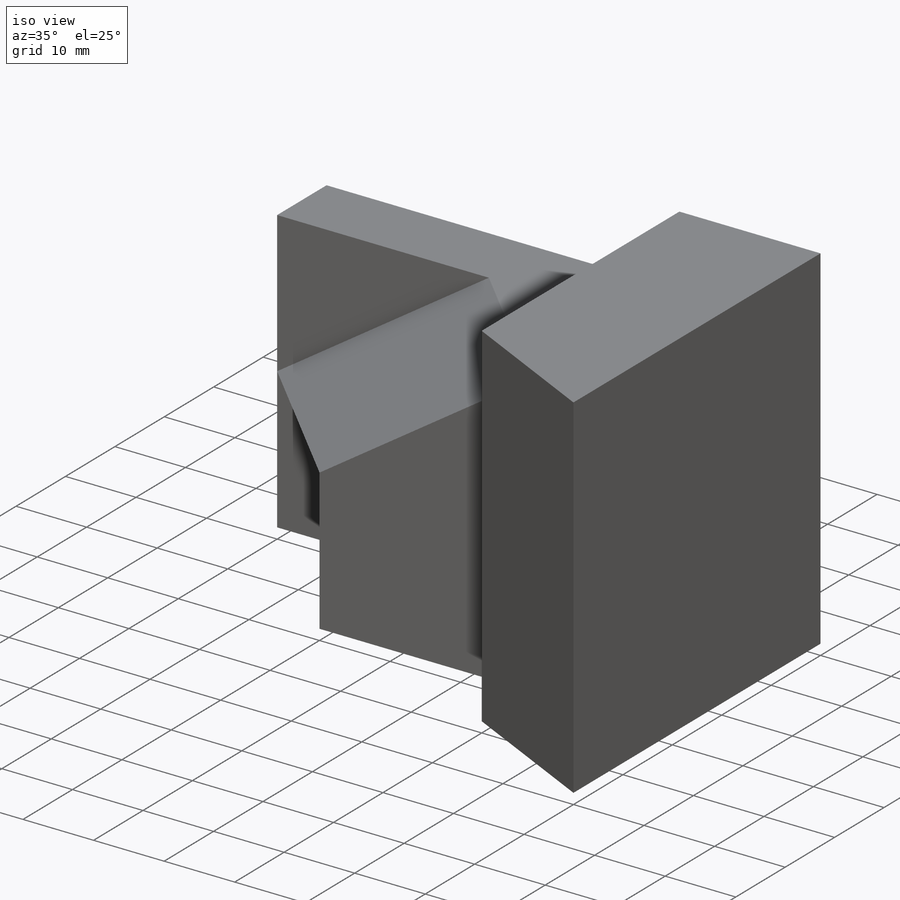
[diagram: iso view]
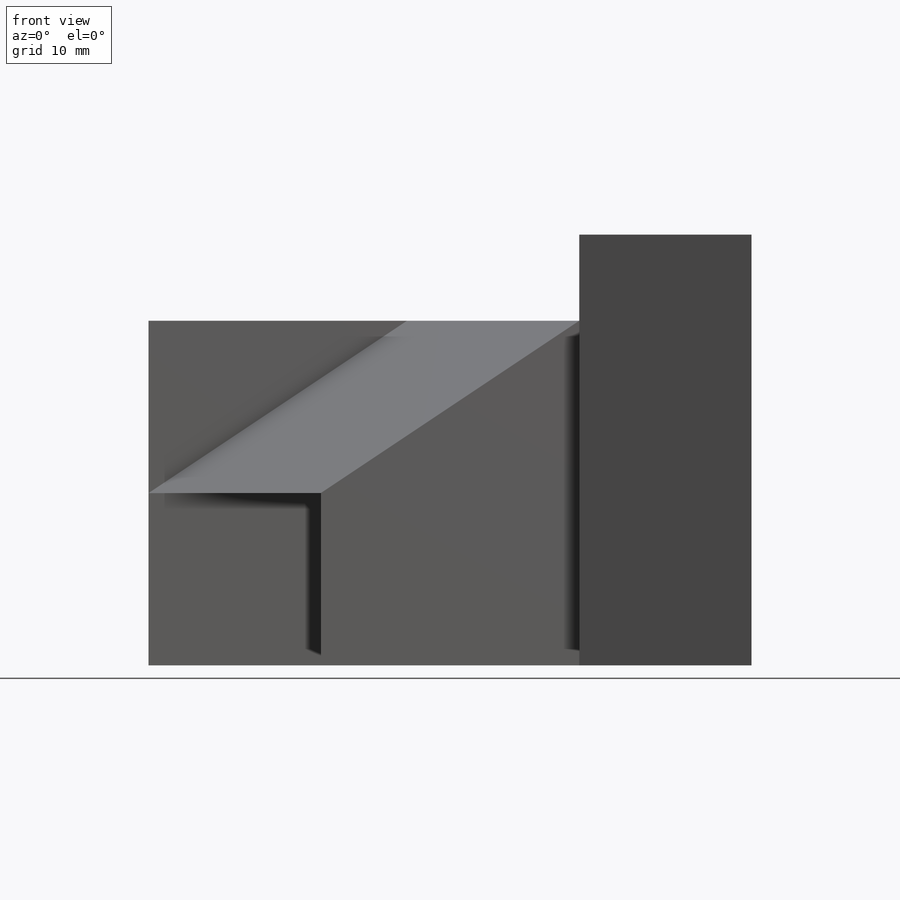
[diagram: front view]
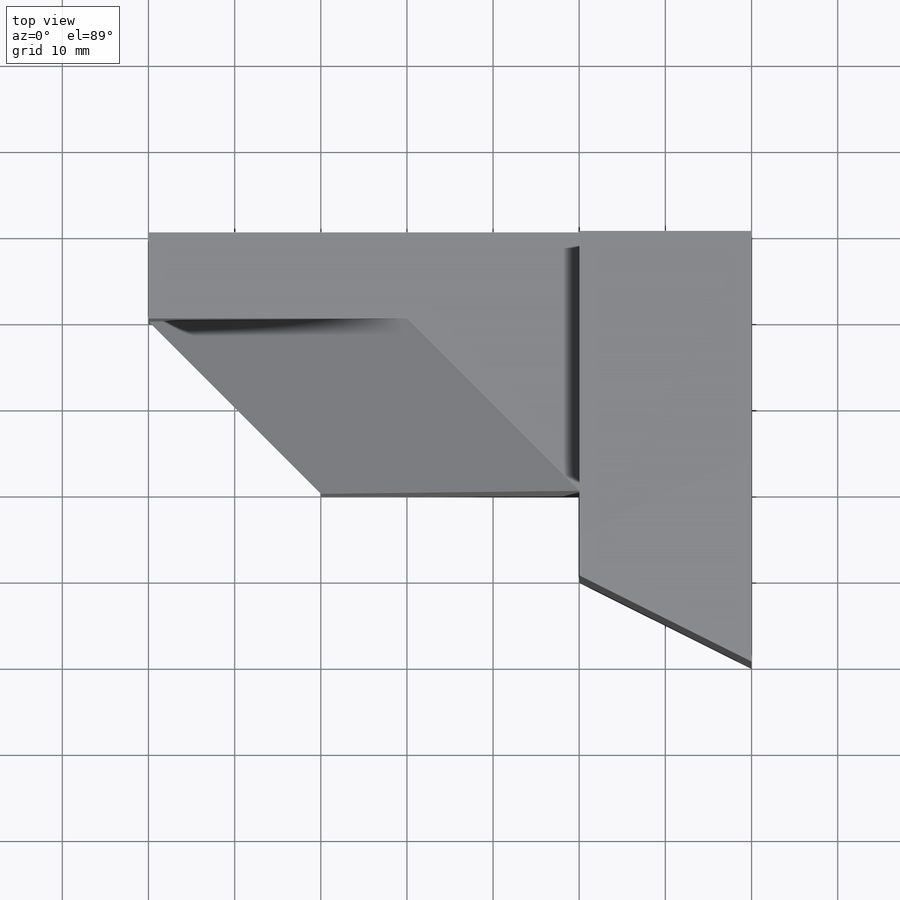
[diagram: top view]
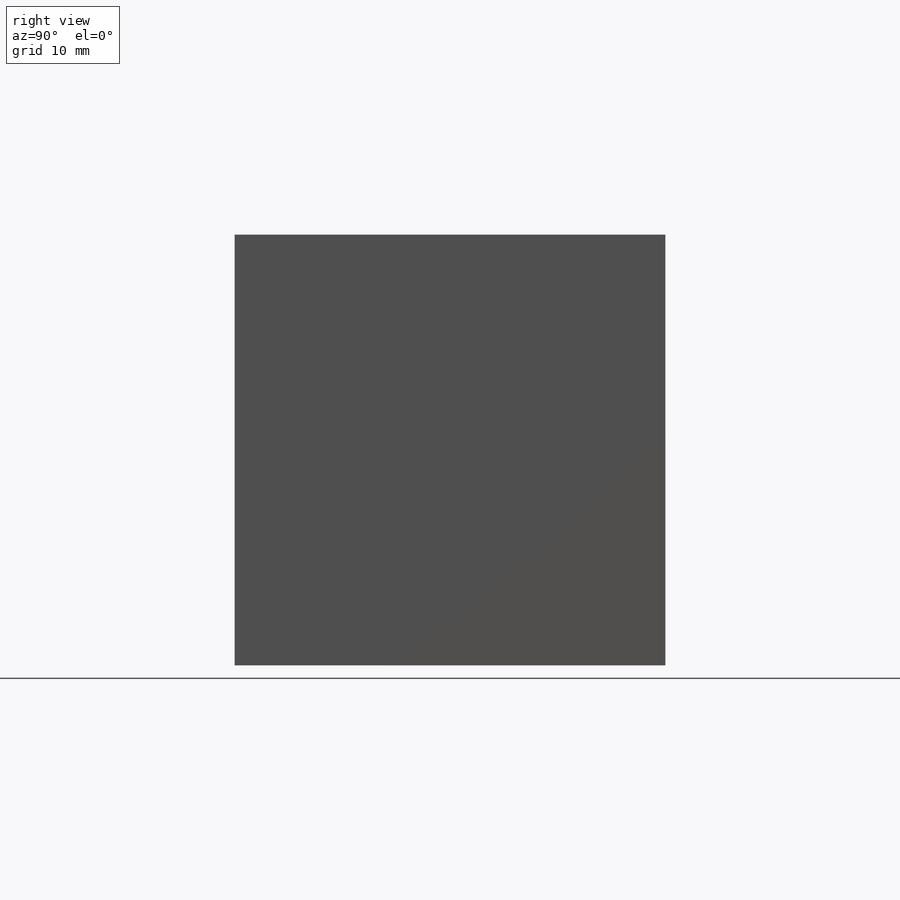
[diagram: right view]
SOLIDWORKS PART (.sldprt)
format: sldprt  version: not decoded by parser v0  size: 232,448 bytes
history: native  units: mm
features: sketch x10, extrude x5, cut_extrude x5, material x1, plane x1 (+13 scaffold rows collapsed)
feature tree (35):
  scaffold x13  (default folders/planes/origin — collapsed)
  material  "Material <not specified>"
  sketch  "Sketch1"  dims[D1=70.0mm D2=50.0mm]
  extrude  "Boss-Extrude1"  Depth=50mm
  sketch  "Sketch2"  dims[D1=10.0mm D2=50.0mm]
  cut_extrude  "Cut-Extrude1"  Depth=50mm
  sketch  "Sketch3"  dims[D1=50.0mm]
  cut_extrude  "Cut-Extrude2"  Depth=40mm
  sketch  "Sketch8"  dims[c1.D1=30.0mm c1.D2=20.0mm c1.D3=20.0mm c1.D4=~36.055513mm c1.D5=20.0mm c1.D6=20.0mm c1.D7=50.0mm c2.D2=20.0mm c2.D3=0.0mm c2.D5=20.0mm]
  cut_extrude  "Cut-Extrude6"  Depth=20mm
  sketch  "Sketch9"
  extrude  "Boss-Extrude9"  Depth=20mm
  plane  "Plane1"
  sketch  "Sketch10"
  extrude  "Boss-Extrude10"  Depth=20mm
  sketch  "Sketch11"  dims[D1=20.0mm D2=20.0mm]
  cut_extrude  "Cut-Extrude7"  Depth=20mm
  sketch  "Sketch12"
  extrude  "Boss-Extrude12"  Depth=10mm
  sketch  "Sketch13"
  extrude  "Boss-Extrude13"  Depth=10mm
  sketch  "Sketch14"  dims[D1=10.0mm]
  cut_extrude  "Cut-Extrude8"  Depth=68mm
decode coverage: 16 of 20 modeling features carry decoded parameters
note: ~ marks probable driven/reference dimensions
note: suppression state not decoded; provenance and decode notes live in map.json
